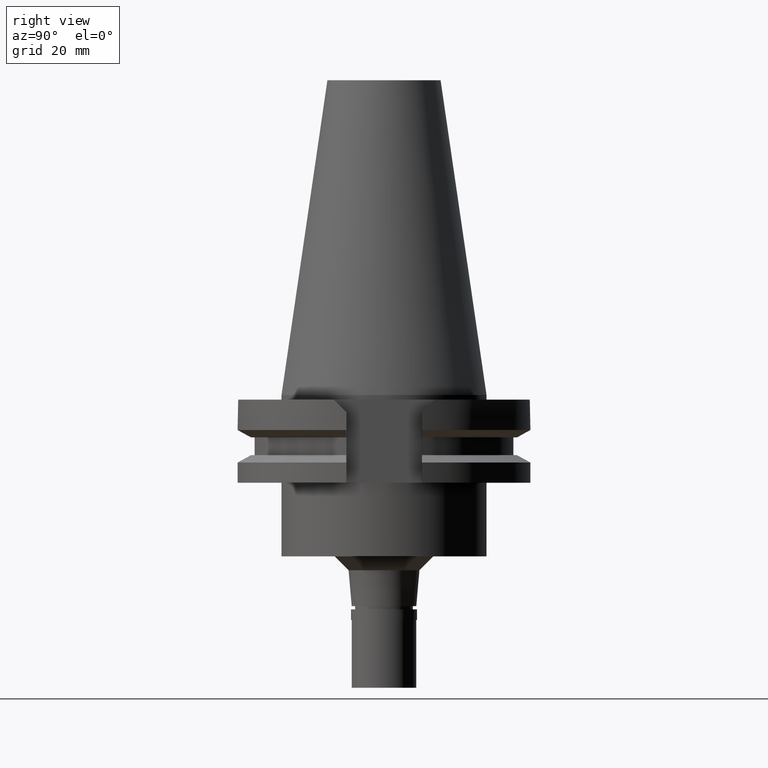
[diagram: clean part render]
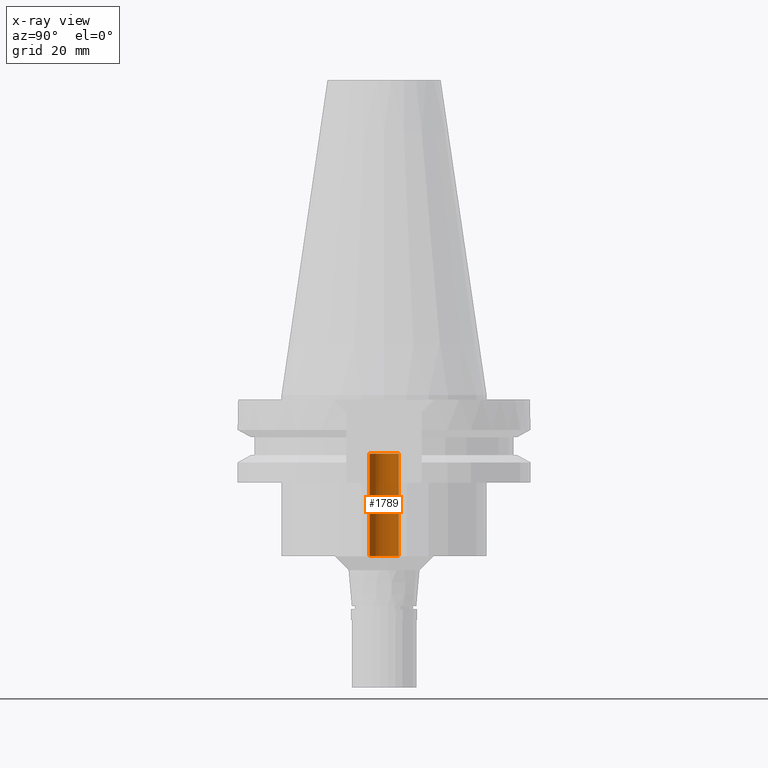
[diagram: x-ray — body ghosted, one internal face saturated and labeled with its STEP entity id]
A machine part, right view, then the same camera in x-ray: the body is ghosted and one INTERNAL B-rep face — a face not visible from any outside direction — is saturated and labeled: STEP entity #1789.
In plain terms, the highlighted cylindrical surface (edge-blend (fillet) strip) has radius 3.2 mm, axis along (0, 0, -1).
Its self-contained STEP definition (entity closure, byte-faithful):
#3 = ORIENTED_EDGE ( 'NONE', *, *, #1801, .T. ) ;
#173 = AXIS2_PLACEMENT_3D ( 'NONE', #648, #1829, #2839 ) ;
#269 = VECTOR ( 'NONE', #2408, 1000.000000000000000 ) ;
#371 = DIRECTION ( 'NONE',  ( 0.0000000000000000000, -1.000000000000000000, 0.0000000000000000000 ) ) ;
#373 = EDGE_CURVE ( 'NONE', #1877, #428, #671, .T. ) ;
#404 = DIRECTION ( 'NONE',  ( 0.0000000000000000000, 0.0000000000000000000, -1.000000000000000000 ) ) ;
#413 = DIRECTION ( 'NONE',  ( 0.0000000000000000000, 0.0000000000000000000, 1.000000000000000000 ) ) ;
#428 = VERTEX_POINT ( 'NONE', #2919 ) ;
#475 = CARTESIAN_POINT ( 'NONE',  ( 0.0000000000000000000, 3.200000000000000178, -12.75000000000000000 ) ) ;
#571 = CARTESIAN_POINT ( 'NONE',  ( 0.0000000000000000000, 3.200000000000000178, -35.00000000000000000 ) ) ;
#617 = CARTESIAN_POINT ( 'NONE',  ( 0.0000000000000000000, 2.138692553861000088E-14, -35.00000000000000000 ) ) ;
#648 = CARTESIAN_POINT ( 'NONE',  ( 0.0000000000000000000, 2.138692553861000088E-14, 74.63749999999998863 ) ) ;
#671 = LINE ( 'NONE', #688, #269 ) ;
#688 = CARTESIAN_POINT ( 'NONE',  ( 0.0000000000000000000, -3.200000000000000178, -35.00000000000000000 ) ) ;
#705 = EDGE_CURVE ( 'NONE', #1116, #2961, #1115, .T. ) ;
#796 = ORIENTED_EDGE ( 'NONE', *, *, #2466, .T. ) ;
#996 = CIRCLE ( 'NONE', #2237, 3.200000000000000178 ) ;
#1115 = LINE ( 'NONE', #2093, #2751 ) ;
#1116 = VERTEX_POINT ( 'NONE', #571 ) ;
#1789 = ADVANCED_FACE ( 'NONE', ( #2854 ), #3049, .F. ) ;
#1801 = EDGE_CURVE ( 'NONE', #1877, #1116, #996, .T. ) ;
#1829 = DIRECTION ( 'NONE',  ( 0.0000000000000000000, 0.0000000000000000000, -1.000000000000000000 ) ) ;
#1877 = VERTEX_POINT ( 'NONE', #2393 ) ;
#1981 = CARTESIAN_POINT ( 'NONE',  ( 0.0000000000000000000, 2.138692553861000088E-14, -12.75000000000000000 ) ) ;
#2093 = CARTESIAN_POINT ( 'NONE',  ( 0.0000000000000000000, 3.200000000000000178, -35.00000000000000000 ) ) ;
#2152 = DIRECTION ( 'NONE',  ( 0.0000000000000000000, 1.000000000000000000, 0.0000000000000000000 ) ) ;
#2237 = AXIS2_PLACEMENT_3D ( 'NONE', #617, #404, #371 ) ;
#2343 = DIRECTION ( 'NONE',  ( 0.0000000000000000000, 0.0000000000000000000, 1.000000000000000000 ) ) ;
#2393 = CARTESIAN_POINT ( 'NONE',  ( 0.0000000000000000000, -3.200000000000000178, -35.00000000000000000 ) ) ;
#2408 = DIRECTION ( 'NONE',  ( 0.0000000000000000000, 0.0000000000000000000, 1.000000000000000000 ) ) ;
#2466 = EDGE_CURVE ( 'NONE', #2961, #428, #2549, .T. ) ;
#2549 = CIRCLE ( 'NONE', #3069, 3.200000000000000178 ) ;
#2751 = VECTOR ( 'NONE', #2343, 1000.000000000000000 ) ;
#2785 = ORIENTED_EDGE ( 'NONE', *, *, #705, .T. ) ;
#2839 = DIRECTION ( 'NONE',  ( 0.0000000000000000000, -1.000000000000000000, 0.0000000000000000000 ) ) ;
#2854 = FACE_OUTER_BOUND ( 'NONE', #3133, .T. ) ;
#2919 = CARTESIAN_POINT ( 'NONE',  ( 0.0000000000000000000, -3.200000000000000178, -12.75000000000000000 ) ) ;
#2961 = VERTEX_POINT ( 'NONE', #475 ) ;
#3049 = CYLINDRICAL_SURFACE ( 'NONE', #173, 3.200000000000000178 ) ;
#3069 = AXIS2_PLACEMENT_3D ( 'NONE', #1981, #413, #2152 ) ;
#3133 = EDGE_LOOP ( 'NONE', ( #796, #3165, #3, #2785 ) ) ;
#3165 = ORIENTED_EDGE ( 'NONE', *, *, #373, .F. ) ;